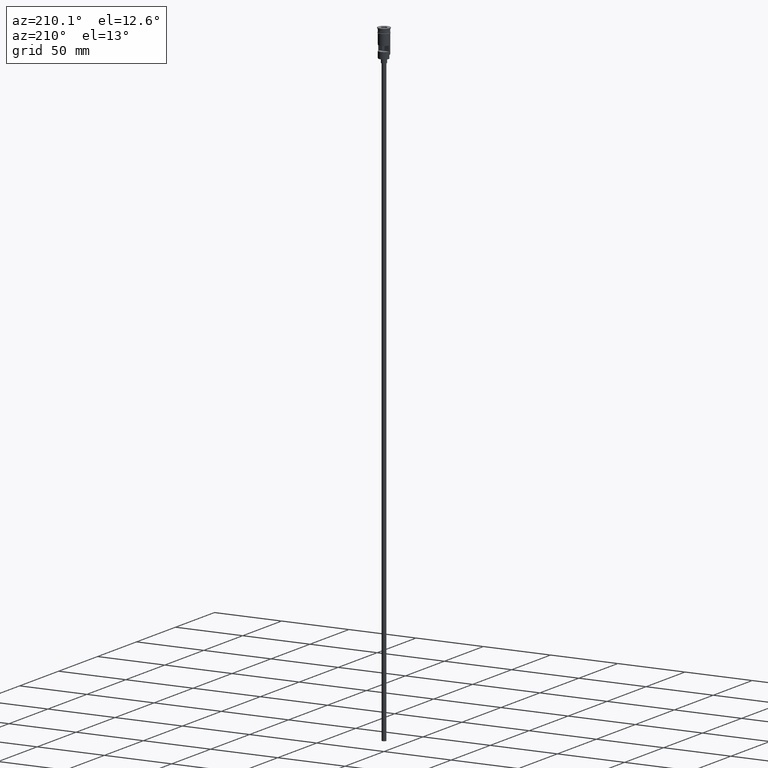
[diagram: clean part render]
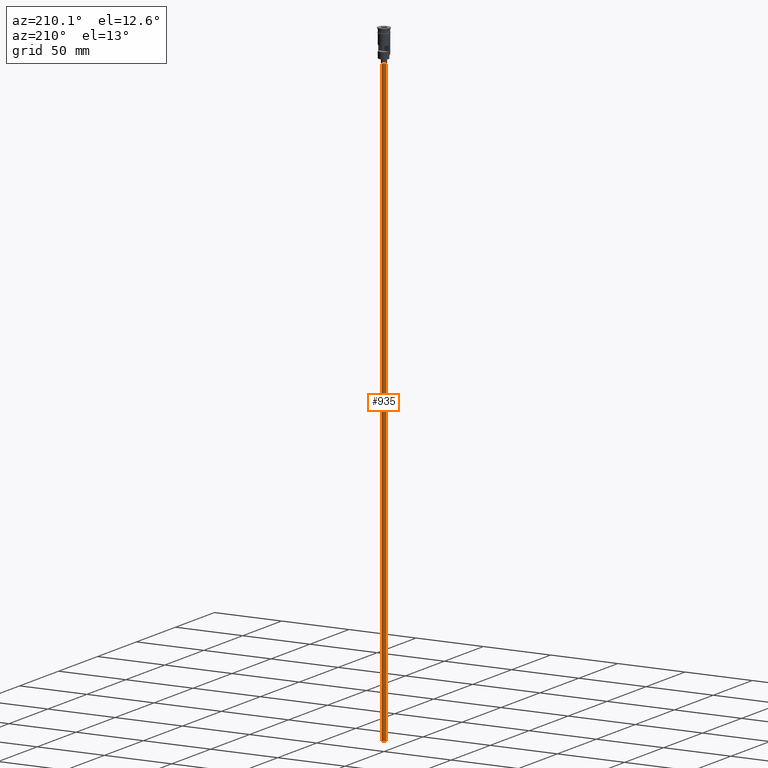
[diagram: same view with one face highlighted and labeled with its STEP entity id]
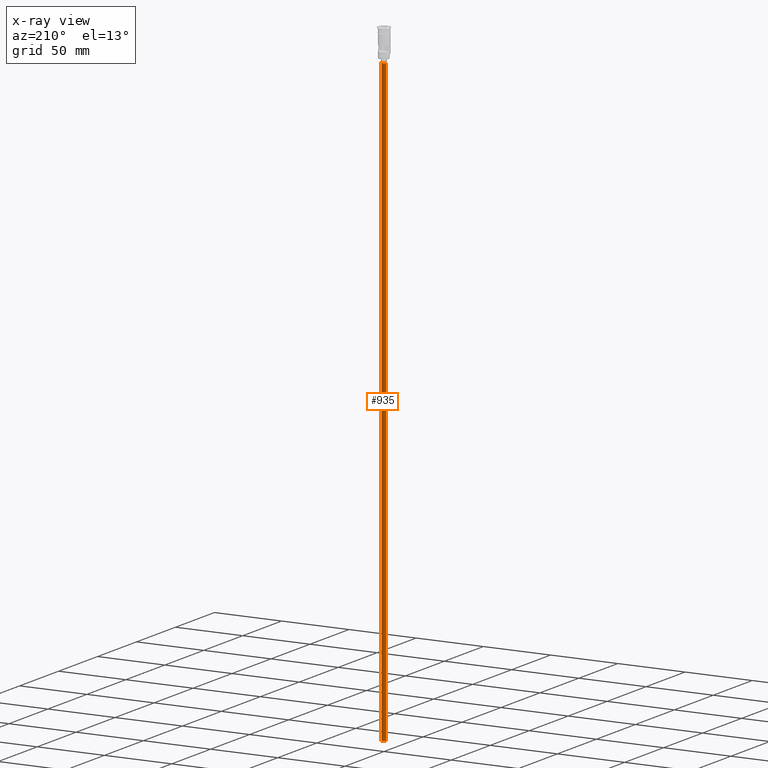
[diagram: x-ray of the same camera — body ghosted, the highlighted face saturated]
A machine part, auxiliary view. The second image highlights one B-rep face of the part: STEP entity #935.
The next image is the same camera in x-ray: the body ghosted, the highlighted face saturated — about 0% of this face is hidden behind the body in this view.
In plain terms, the highlighted cylindrical surface (edge-blend (fillet) strip) has radius 1.5 mm, axis along (-0, -0, 1).
Its self-contained STEP definition (entity closure, byte-faithful):
#4 = CIRCLE ( 'NONE', #999, 1.500000000000000222 ) ;
#12 = ORIENTED_EDGE ( 'NONE', *, *, #1336, .F. ) ;
#22 = DIRECTION ( 'NONE',  ( 0.000000000000000000, 0.000000000000000000, -1.000000000000000000 ) ) ;
#40 = DIRECTION ( 'NONE',  ( -1.000000000000000000, 0.000000000000000000, 0.000000000000000000 ) ) ;
#41 = CARTESIAN_POINT ( 'NONE',  ( 0.000000000000000000, 0.000000000000000000, -23.49999999999999645 ) ) ;
#106 = CIRCLE ( 'NONE', #1193, 1.500000000000000222 ) ;
#129 = VERTEX_POINT ( 'NONE', #1236 ) ;
#132 = VERTEX_POINT ( 'NONE', #588 ) ;
#211 = DIRECTION ( 'NONE',  ( -0.000000000000000000, -0.000000000000000000, 1.000000000000000000 ) ) ;
#218 = LINE ( 'NONE', #706, #1579 ) ;
#301 = CARTESIAN_POINT ( 'NONE',  ( 1.500000000000000222, 0.000000000000000000, -470.5000000000000568 ) ) ;
#388 = CARTESIAN_POINT ( 'NONE',  ( 0.000000000000000000, 0.000000000000000000, -470.5000000000000568 ) ) ;
#425 = LINE ( 'NONE', #301, #1122 ) ;
#568 = FACE_OUTER_BOUND ( 'NONE', #1100, .T. ) ;
#570 = DIRECTION ( 'NONE',  ( -1.000000000000000000, 0.000000000000000000, 0.000000000000000000 ) ) ;
#588 = CARTESIAN_POINT ( 'NONE',  ( -1.500000000000000222, 1.836970198721030181E-16, -23.49999999999999645 ) ) ;
#625 = CARTESIAN_POINT ( 'NONE',  ( 1.500000000000000222, 0.000000000000000000, -470.5000000000000568 ) ) ;
#632 = AXIS2_PLACEMENT_3D ( 'NONE', #830, #850, #722 ) ;
#706 = CARTESIAN_POINT ( 'NONE',  ( -1.500000000000000222, 1.836970198721030181E-16, -470.5000000000000568 ) ) ;
#722 = DIRECTION ( 'NONE',  ( 1.000000000000000000, 0.000000000000000000, 0.000000000000000000 ) ) ;
#798 = DIRECTION ( 'NONE',  ( 0.000000000000000000, 0.000000000000000000, -1.000000000000000000 ) ) ;
#805 = EDGE_CURVE ( 'NONE', #129, #1044, #106, .T. ) ;
#806 = DIRECTION ( 'NONE',  ( -0.000000000000000000, -0.000000000000000000, 1.000000000000000000 ) ) ;
#830 = CARTESIAN_POINT ( 'NONE',  ( 0.000000000000000000, 0.000000000000000000, -470.5000000000000568 ) ) ;
#850 = DIRECTION ( 'NONE',  ( -0.000000000000000000, -0.000000000000000000, 1.000000000000000000 ) ) ;
#911 = ORIENTED_EDGE ( 'NONE', *, *, #1481, .T. ) ;
#935 = ADVANCED_FACE ( 'NONE', ( #568 ), #1224, .T. ) ;
#999 = AXIS2_PLACEMENT_3D ( 'NONE', #41, #798, #570 ) ;
#1026 = VERTEX_POINT ( 'NONE', #1586 ) ;
#1044 = VERTEX_POINT ( 'NONE', #625 ) ;
#1100 = EDGE_LOOP ( 'NONE', ( #1467, #911, #1221, #12 ) ) ;
#1122 = VECTOR ( 'NONE', #806, 1000.000000000000000 ) ;
#1193 = AXIS2_PLACEMENT_3D ( 'NONE', #388, #22, #40 ) ;
#1221 = ORIENTED_EDGE ( 'NONE', *, *, #1253, .T. ) ;
#1224 = CYLINDRICAL_SURFACE ( 'NONE', #632, 1.500000000000000222 ) ;
#1236 = CARTESIAN_POINT ( 'NONE',  ( -1.500000000000000222, 1.836970198721030181E-16, -470.5000000000000568 ) ) ;
#1253 = EDGE_CURVE ( 'NONE', #132, #1026, #4, .T. ) ;
#1336 = EDGE_CURVE ( 'NONE', #1044, #1026, #425, .T. ) ;
#1467 = ORIENTED_EDGE ( 'NONE', *, *, #805, .F. ) ;
#1481 = EDGE_CURVE ( 'NONE', #129, #132, #218, .T. ) ;
#1579 = VECTOR ( 'NONE', #211, 1000.000000000000000 ) ;
#1586 = CARTESIAN_POINT ( 'NONE',  ( 1.500000000000000222, 0.000000000000000000, -23.49999999999999645 ) ) ;